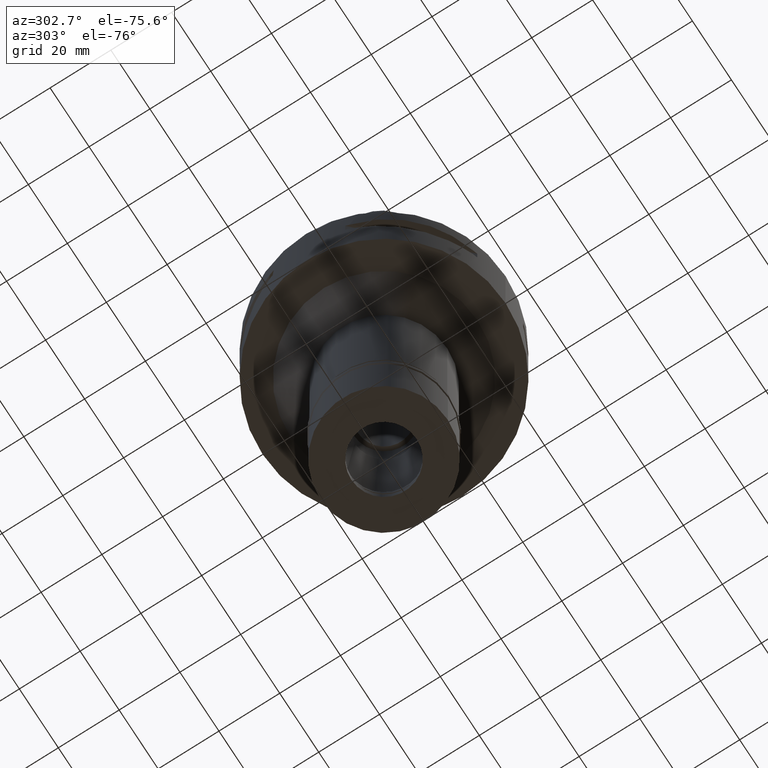
[diagram: clean part render]
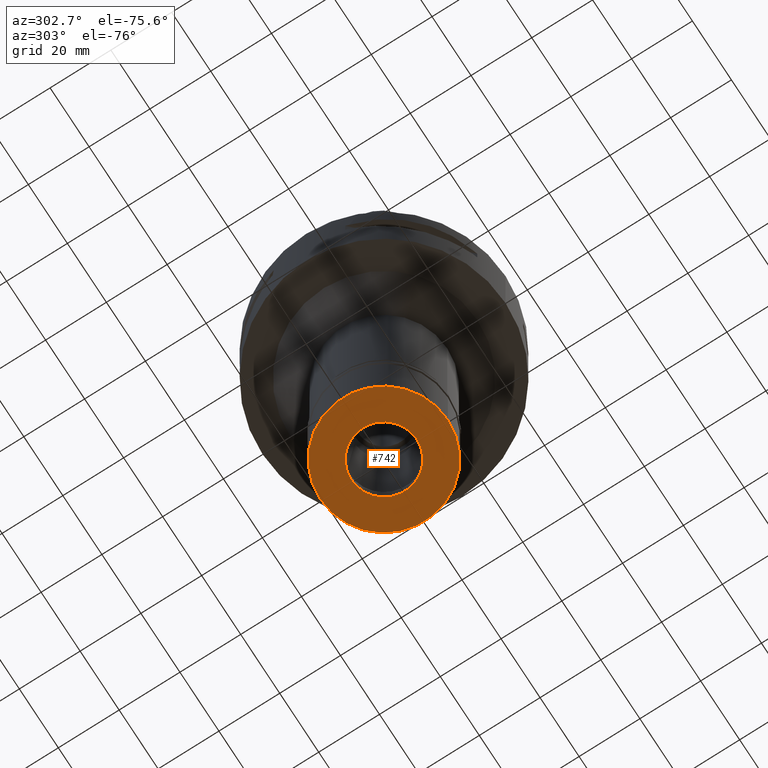
[diagram: same view with one face highlighted and labeled with its STEP entity id]
A machine part, auxiliary view. The second image highlights one B-rep face of the part: STEP entity #742.
In plain terms, the highlighted planar face has unit normal (0, 0, -1).
Its self-contained STEP definition (entity closure, byte-faithful):
#94 = AXIS2_PLACEMENT_3D ( 'NONE', #3799, #2202, #2261 ) ;
#392 = CARTESIAN_POINT ( 'NONE',  ( 0.0000000000000000000, 0.0000000000000000000, -27.09999999999999787 ) ) ;
#418 = CIRCLE ( 'NONE', #4245, 21.00000000000000000 ) ;
#523 = CARTESIAN_POINT ( 'NONE',  ( 0.0000000000000000000, -21.00000000000000000, -27.09999999999999787 ) ) ;
#623 = CARTESIAN_POINT ( 'NONE',  ( 0.0000000000000000000, 0.0000000000000000000, -27.09999999999999787 ) ) ;
#742 = ADVANCED_FACE ( 'NONE', ( #2619, #1797 ), #4513, .T. ) ;
#1039 = DIRECTION ( 'NONE',  ( 0.0000000000000000000, 0.0000000000000000000, -1.000000000000000000 ) ) ;
#1090 = DIRECTION ( 'NONE',  ( 0.0000000000000000000, -1.000000000000000000, 0.0000000000000000000 ) ) ;
#1117 = VERTEX_POINT ( 'NONE', #523 ) ;
#1168 = DIRECTION ( 'NONE',  ( 0.0000000000000000000, 0.0000000000000000000, -1.000000000000000000 ) ) ;
#1249 = EDGE_CURVE ( 'NONE', #4365, #2875, #1636, .T. ) ;
#1431 = AXIS2_PLACEMENT_3D ( 'NONE', #392, #3982, #3202 ) ;
#1437 = ORIENTED_EDGE ( 'NONE', *, *, #1462, .F. ) ;
#1462 = EDGE_CURVE ( 'NONE', #1117, #4090, #418, .T. ) ;
#1636 = CIRCLE ( 'NONE', #4560, 10.75000000000000000 ) ;
#1688 = ORIENTED_EDGE ( 'NONE', *, *, #4694, .F. ) ;
#1797 = FACE_BOUND ( 'NONE', #4495, .T. ) ;
#2002 = CARTESIAN_POINT ( 'NONE',  ( 0.0000000000000000000, 0.0000000000000000000, -27.09999999999999787 ) ) ;
#2202 = DIRECTION ( 'NONE',  ( 0.0000000000000000000, 0.0000000000000000000, -1.000000000000000000 ) ) ;
#2261 = DIRECTION ( 'NONE',  ( 0.0000000000000000000, 1.000000000000000000, 0.0000000000000000000 ) ) ;
#2281 = DIRECTION ( 'NONE',  ( 0.0000000000000000000, -1.000000000000000000, 0.0000000000000000000 ) ) ;
#2619 = FACE_OUTER_BOUND ( 'NONE', #3555, .T. ) ;
#2732 = CARTESIAN_POINT ( 'NONE',  ( 0.0000000000000000000, 0.0000000000000000000, -27.09999999999999787 ) ) ;
#2859 = ORIENTED_EDGE ( 'NONE', *, *, #2894, .F. ) ;
#2875 = VERTEX_POINT ( 'NONE', #2960 ) ;
#2894 = EDGE_CURVE ( 'NONE', #2875, #4365, #3850, .T. ) ;
#2960 = CARTESIAN_POINT ( 'NONE',  ( 0.0000000000000000000, 10.75000000000000000, -27.09999999999999787 ) ) ;
#3108 = DIRECTION ( 'NONE',  ( 0.0000000000000000000, -1.000000000000000000, 0.0000000000000000000 ) ) ;
#3187 = CARTESIAN_POINT ( 'NONE',  ( 0.0000000000000000000, 21.00000000000000000, -27.09999999999999787 ) ) ;
#3202 = DIRECTION ( 'NONE',  ( 0.0000000000000000000, 1.000000000000000000, 0.0000000000000000000 ) ) ;
#3555 = EDGE_LOOP ( 'NONE', ( #1688, #1437 ) ) ;
#3601 = ORIENTED_EDGE ( 'NONE', *, *, #1249, .F. ) ;
#3799 = CARTESIAN_POINT ( 'NONE',  ( 0.0000000000000000000, 0.0000000000000000000, -27.09999999999999787 ) ) ;
#3850 = CIRCLE ( 'NONE', #94, 10.75000000000000000 ) ;
#3982 = DIRECTION ( 'NONE',  ( 0.0000000000000000000, 0.0000000000000000000, 1.000000000000000000 ) ) ;
#4090 = VERTEX_POINT ( 'NONE', #3187 ) ;
#4245 = AXIS2_PLACEMENT_3D ( 'NONE', #2732, #4275, #2281 ) ;
#4270 = CIRCLE ( 'NONE', #1431, 21.00000000000000000 ) ;
#4275 = DIRECTION ( 'NONE',  ( 0.0000000000000000000, 0.0000000000000000000, 1.000000000000000000 ) ) ;
#4365 = VERTEX_POINT ( 'NONE', #4936 ) ;
#4495 = EDGE_LOOP ( 'NONE', ( #2859, #3601 ) ) ;
#4513 = PLANE ( 'NONE',  #4552 ) ;
#4552 = AXIS2_PLACEMENT_3D ( 'NONE', #623, #1039, #1090 ) ;
#4560 = AXIS2_PLACEMENT_3D ( 'NONE', #2002, #1168, #3108 ) ;
#4694 = EDGE_CURVE ( 'NONE', #4090, #1117, #4270, .T. ) ;
#4936 = CARTESIAN_POINT ( 'NONE',  ( 0.0000000000000000000, -10.75000000000000000, -27.09999999999999787 ) ) ;